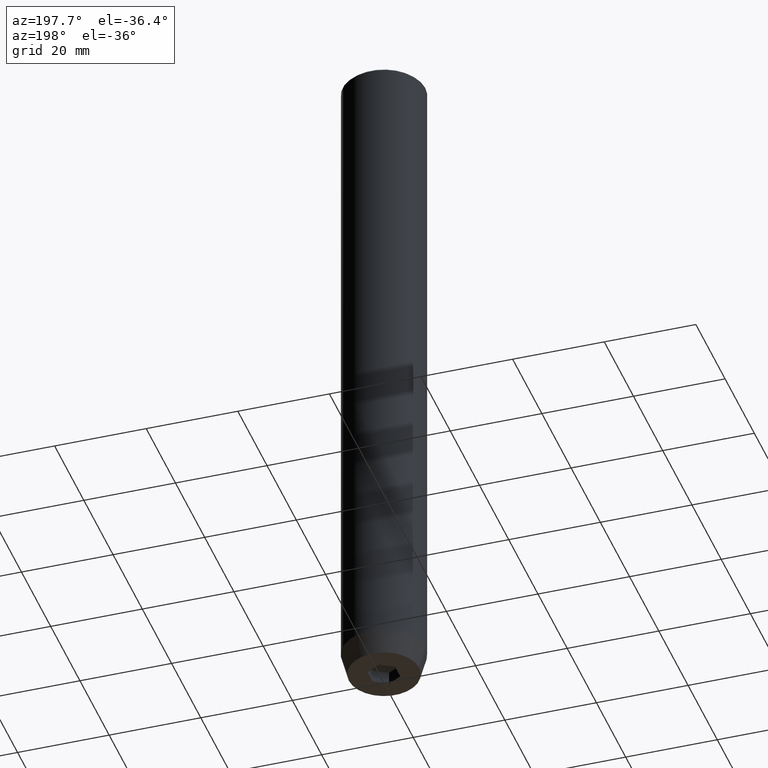
[diagram: clean part render]
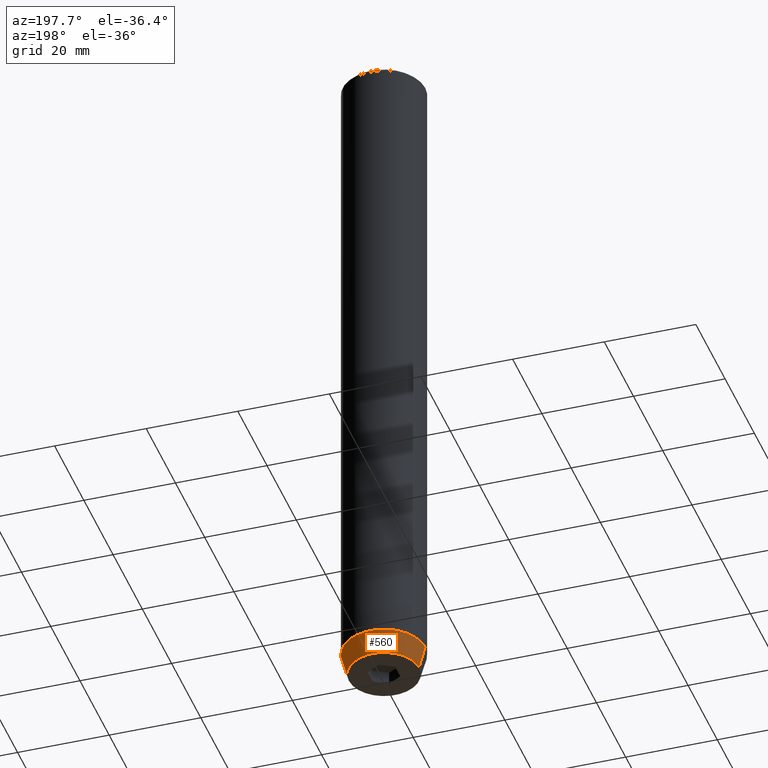
[diagram: same view with one face highlighted and labeled with its STEP entity id]
A machine part, auxiliary view. The second image highlights one B-rep face of the part: STEP entity #560.
In plain terms, the highlighted conical surface has half-angle 15 deg.
Its self-contained STEP definition (entity closure, byte-faithful):
#1 = CARTESIAN_POINT ( 'NONE',  ( -9.000000000000000000, 1.102182119232617714E-15, -144.9999999999999716 ) ) ;
#22 = DIRECTION ( 'NONE',  ( -0.000000000000000000, -0.000000000000000000, 1.000000000000000000 ) ) ;
#32 = VERTEX_POINT ( 'NONE', #456 ) ;
#40 = DIRECTION ( 'NONE',  ( -0.000000000000000000, -0.000000000000000000, 1.000000000000000000 ) ) ;
#46 = CARTESIAN_POINT ( 'NONE',  ( 0.000000000000000000, 0.000000000000000000, -150.0000000000000000 ) ) ;
#57 = AXIS2_PLACEMENT_3D ( 'NONE', #415, #22, #318 ) ;
#59 = ORIENTED_EDGE ( 'NONE', *, *, #428, .F. ) ;
#83 = DIRECTION ( 'NONE',  ( -0.000000000000000000, -0.000000000000000000, 1.000000000000000000 ) ) ;
#113 = CIRCLE ( 'NONE', #366, 7.660254037844373087 ) ;
#119 = CARTESIAN_POINT ( 'NONE',  ( -7.660254037844373087, 1.020146339021393680E-15, -150.0000000000000000 ) ) ;
#134 = DIRECTION ( 'NONE',  ( 1.000000000000000000, 0.000000000000000000, 0.000000000000000000 ) ) ;
#137 = DIRECTION ( 'NONE',  ( 0.2588190451025214056, 0.000000000000000000, 0.9659258262890680902 ) ) ;
#144 = EDGE_CURVE ( 'NONE', #294, #32, #319, .T. ) ;
#151 = CARTESIAN_POINT ( 'NONE',  ( 7.660254037844373087, 0.000000000000000000, -150.0000000000000000 ) ) ;
#168 = CARTESIAN_POINT ( 'NONE',  ( 0.000000000000000000, 0.000000000000000000, -144.9999999999999716 ) ) ;
#189 = VECTOR ( 'NONE', #486, 1000.000000000000000 ) ;
#226 = DIRECTION ( 'NONE',  ( 1.000000000000000000, 0.000000000000000000, 0.000000000000000000 ) ) ;
#231 = CIRCLE ( 'NONE', #367, 9.000000000000000000 ) ;
#239 = FACE_OUTER_BOUND ( 'NONE', #462, .T. ) ;
#252 = VERTEX_POINT ( 'NONE', #119 ) ;
#259 = ORIENTED_EDGE ( 'NONE', *, *, #413, .T. ) ;
#294 = VERTEX_POINT ( 'NONE', #151 ) ;
#318 = DIRECTION ( 'NONE',  ( 1.000000000000000000, 0.000000000000000000, 0.000000000000000000 ) ) ;
#319 = LINE ( 'NONE', #323, #321 ) ;
#321 = VECTOR ( 'NONE', #137, 1000.000000000000000 ) ;
#323 = CARTESIAN_POINT ( 'NONE',  ( 9.000000000000000000, 0.000000000000000000, -144.9999999999999716 ) ) ;
#366 = AXIS2_PLACEMENT_3D ( 'NONE', #46, #40, #226 ) ;
#367 = AXIS2_PLACEMENT_3D ( 'NONE', #168, #83, #134 ) ;
#400 = ORIENTED_EDGE ( 'NONE', *, *, #437, .T. ) ;
#402 = CARTESIAN_POINT ( 'NONE',  ( -9.000000000000000000, 1.102182119232617714E-15, -144.9999999999999716 ) ) ;
#413 = EDGE_CURVE ( 'NONE', #252, #469, #580, .T. ) ;
#415 = CARTESIAN_POINT ( 'NONE',  ( 0.000000000000000000, 0.000000000000000000, -144.9999999999999716 ) ) ;
#428 = EDGE_CURVE ( 'NONE', #32, #469, #231, .T. ) ;
#437 = EDGE_CURVE ( 'NONE', #294, #252, #113, .T. ) ;
#456 = CARTESIAN_POINT ( 'NONE',  ( 9.000000000000000000, 0.000000000000000000, -144.9999999999999716 ) ) ;
#462 = EDGE_LOOP ( 'NONE', ( #400, #259, #59, #528 ) ) ;
#469 = VERTEX_POINT ( 'NONE', #402 ) ;
#471 = CONICAL_SURFACE ( 'NONE', #57, 9.000000000000000000, 0.2617993877991501295 ) ;
#486 = DIRECTION ( 'NONE',  ( -0.2588190451025214056, 3.169619151431772953E-17, 0.9659258262890680902 ) ) ;
#528 = ORIENTED_EDGE ( 'NONE', *, *, #144, .F. ) ;
#560 = ADVANCED_FACE ( 'NONE', ( #239 ), #471, .T. ) ;
#580 = LINE ( 'NONE', #1, #189 ) ;